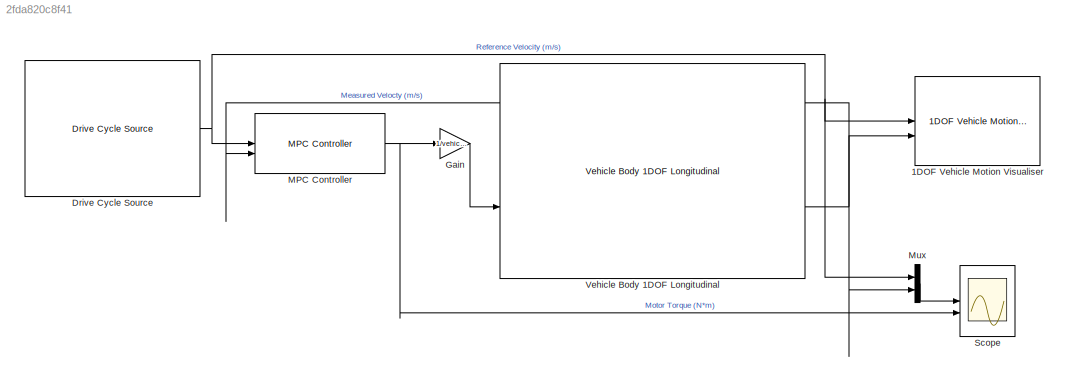
MODEL slx_2fda820c8f41
KIND model
CONFIG AbsTol = auto
CONFIG EnableMultiTasking = off
CONFIG FixedStep = auto
CONFIG MaxStep = auto
CONFIG MinStep = auto
CONFIG RelTol = 1e-3
CONFIG SampleTimeConstraint = Unconstrained
CONFIG SolverName = VariableStepAuto
CONFIG StartTime = 0.0
CONFIG StopTime = 1000
BLOCK [Reference] 1DOF Vehicle Motion Visualiser  REF=vehicleMotionVisualiser/1DOF Vehicle Motion Visualiser
  SourceBlock = vehicleMotionVisualiser/1DOF Vehicle Motion Visualiser
BLOCK [Reference] Drive Cycle Source  REF=autolibshared/Drive Cycle Source
  AttributesFormatString = %<cycleVar> (%<tfinal>)
  LibrarySourceBlock = autolibscenario/Drive Cycle Source
  SourceBlock = autolibshared/Drive Cycle Source
  SourceType = Drive Cycle Source
BLOCK [Gain] Gain
  Gain = 1/vehicleParams.wheelRadius
BLOCK [Reference] MPC Controller  REF=modelPredictiveController/MPC Controller
  SourceBlock = modelPredictiveController/MPC Controller
BLOCK [Mux] Mux
  DisplayOption = bar
  Inputs = 2
BLOCK [Scope] Scope
  Floating = off
  NumInputPorts = 2
  ScopeSpecificationString = Simulink.scopes.TimeScopeBlockCfg('CurrentConfiguration', extmgr.ConfigurationSet(extmgr.Configuration('Core','General UI',true,'FigureColor',[1 1 1]),extmgr.Configuration('Core','Source UI',true),extmgr.Configuration('Sources','WiredSimulink',true),extmgr.Configuration('Visuals','Time Domain',true,'SerializedDisplays',{struct('MinYLimReal','-3.20416','MaxYLimReal','28.8374','YLabelReal','','MinYL...<+2529ch>
BLOCK [Reference] Vehicle Body 1DOF Longitudinal  REF=autolibshared/Vehicle Body 1DOF Longitudinal
  LibrarySourceBlock = autolibvehdynlong/Vehicle Body 1DOF Longitudinal
  SourceBlock = autolibshared/Vehicle Body 1DOF Longitudinal
  SourceType = Vehicle Body 1DOF Longitudinal
NET Drive Cycle Source:1 -> 1DOF Vehicle Motion Visualiser:1, MPC Controller:1, Mux:1
LINE Gain:1 -> Vehicle Body 1DOF Longitudinal:2
NET MPC Controller:1 -> Gain:1, Scope:2
LINE Mux:1 -> Scope:1
NET Vehicle Body 1DOF Longitudinal:2 -> 1DOF Vehicle Motion Visualiser:2, MPC Controller:2, Mux:2
note: NET lines group one-source signal fan-out (src -> all destinations, sorted); 1:1 wires keep LINE
